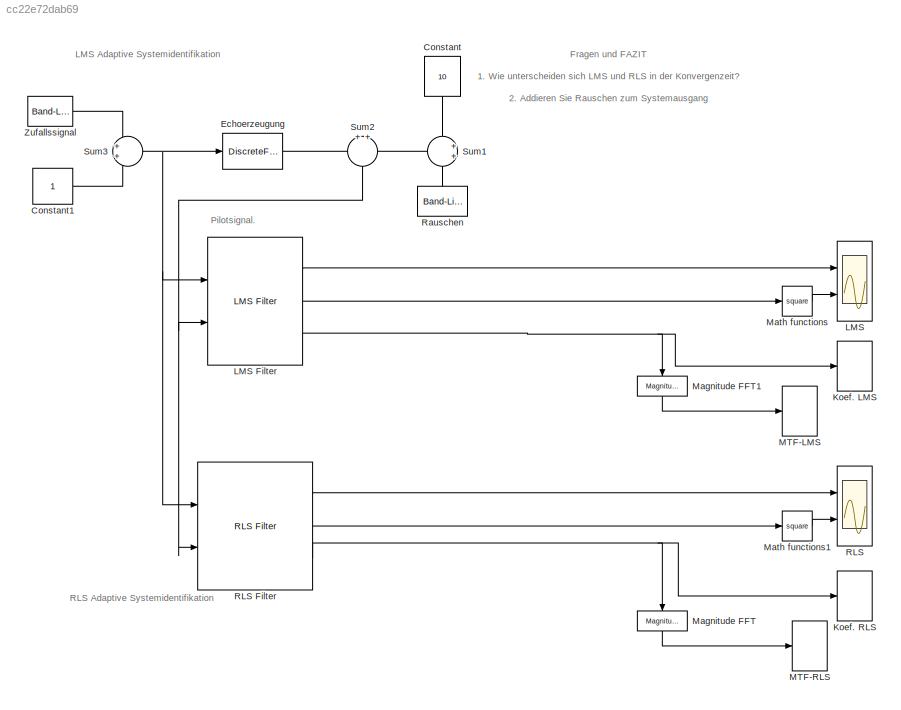
MODEL slx_cc22e72dab69
KIND model
CONFIG AbsTol = auto
CONFIG EnableMultiTasking = on
CONFIG FixedStep = auto
CONFIG MaxStep = auto
CONFIG MinStep = auto
CONFIG RelTol = 1e-3
CONFIG SampleTimeConstraint = Unconstrained
CONFIG Solver = ode45
CONFIG SolverName = ode45
CONFIG StartTime = 0.0
CONFIG StopTime = 30000.0
BLOCK [Constant] Constant
  SampleTime = 1
  Value = 10
BLOCK [Constant] Constant1
  SampleTime = 1
BLOCK [DiscreteFilter] Echoerzeugung
  Denominator = [1 ]
  InputPortMap = u0
  Numerator = [ 1 0 0 0 0 0 0 0 0.8]
  Ports = [1, 1]
  SampleTime = 1
BLOCK [ArrayPlot] Koef. LMS
  Ports = [1]
  ScopeSpecificationString = dsp.scopes.ArrayPlotBlockSpecification('CurrentConfiguration', extmgr.ConfigurationSet(extmgr.Configuration('Core','General UI',true),extmgr.Configuration('Core','Source UI',true),extmgr.Configuration('Sources','WiredSimulink',true),extmgr.Configuration('Visuals','Array Plot',true,'VectorScopeLegacyMode',true,'DisplayPropertyDefaults',struct('MinYLimReal','-0.129067','MaxYLimReal','1.13132','YLabe...<+1725ch>
BLOCK [ArrayPlot] Koef. RLS
  Ports = [1]
  ScopeSpecificationString = dsp.scopes.ArrayPlotBlockSpecification('CurrentConfiguration', extmgr.ConfigurationSet(extmgr.Configuration('Core','General UI',true),extmgr.Configuration('Core','Source UI',true),extmgr.Configuration('Sources','WiredSimulink',true),extmgr.Configuration('Visuals','Array Plot',true,'VectorScopeLegacyMode',true,'DisplayPropertyDefaults',struct('MinYLimReal','-1.05511','MaxYLimReal','1.02126','YLabel...<+1722ch>
BLOCK [Scope] LMS
  AttributesFormatString = test
  Floating = off
  NumInputPorts = 2
  Ports = [2]
  ScopeSpecificationString = Simulink.scopes.TimeScopeBlockCfg('CurrentConfiguration', extmgr.ConfigurationSet(extmgr.Configuration('Core','General UI',true),extmgr.Configuration('Core','Source UI',true),extmgr.Configuration('Sources','WiredSimulink',true,'DataLoggingVariableName','ScopeData1','DataLoggingSaveFormat','StructureWithTime','DataLoggingDecimation','1','DataLoggingDecimateData',true),extmgr.Configuration('Visuals'...<+2335ch>
BLOCK [Reference] LMS Filter  REF=dspadpt3/LMS Filter
  Ports = [2, 3]
  SourceBlock = dspadpt3/LMS Filter
  SourceProductBaseCode = DS
  SourceProductName = DSP System Toolbox
  SourceType = LMS Filter
BLOCK [ArrayPlot] MTF-LMS
  Ports = [1]
  ScopeSpecificationString = dsp.scopes.ArrayPlotBlockSpecification('CurrentConfiguration', extmgr.ConfigurationSet(extmgr.Configuration('Core','General UI',true),extmgr.Configuration('Core','Source UI',true),extmgr.Configuration('Sources','WiredSimulink',true),extmgr.Configuration('Visuals','Array Plot',true,'VectorScopeLegacyMode',true,'DisplayPropertyDefaults',struct('MinYLimReal','-0.0549773','MaxYLimReal','2.19036','YLab...<+1742ch>
BLOCK [ArrayPlot] MTF-RLS
  Ports = [1]
  ScopeSpecificationString = dsp.scopes.ArrayPlotBlockSpecification('CurrentConfiguration', extmgr.ConfigurationSet(extmgr.Configuration('Core','General UI',true),extmgr.Configuration('Core','Source UI',true),extmgr.Configuration('Sources','WiredSimulink',true),extmgr.Configuration('Sources','SimulinkEvent',false),extmgr.Configuration('Sources','Simulink',false),extmgr.Configuration('Sources','SPTool',false),extmgr.Configurat...<+3305ch>
BLOCK [Reference] Magnitude FFT  REF=dspspect3/Magnitude
FFT
  Ports = [1, 1]
  SourceBlock = dspspect3/Magnitude\nFFT
  SourceProductBaseCode = DS
  SourceProductName = DSP System Toolbox
  SourceType = Magnitude FFT
BLOCK [Reference] Magnitude FFT1  REF=dspspect3/Magnitude
FFT
  Ports = [1, 1]
  SourceBlock = dspspect3/Magnitude\nFFT
  SourceProductBaseCode = DS
  SourceProductName = DSP System Toolbox
  SourceType = Magnitude FFT
BLOCK [Math] Math functions
  Operator = square
  Ports = [1, 1]
BLOCK [Math] Math functions1
  Operator = square
  Ports = [1, 1]
BLOCK [Scope] RLS
  Floating = off
  NumInputPorts = 2
  Ports = [2]
  ScopeSpecificationString = Simulink.scopes.TimeScopeBlockCfg('CurrentConfiguration', extmgr.ConfigurationSet(extmgr.Configuration('Core','General UI',true),extmgr.Configuration('Core','Source UI',true),extmgr.Configuration('Sources','WiredSimulink',true,'DataLoggingSaveFormat','StructureWithTime','DataLoggingDecimation','1','DataLoggingDecimateData',true),extmgr.Configuration('Visuals','Time Domain',true,'SerializedDisplays...<+2189ch>
BLOCK [Reference] RLS Filter  REF=dspadpt3/RLS Filter
  Ports = [2, 3]
  SourceBlock = dspadpt3/RLS Filter
  SourceProductBaseCode = DS
  SourceProductName = DSP System Toolbox
  SourceType = RLS filter
BLOCK [Reference] Rauschen  REF=simulink/Sources/Band-Limited
White Noise
  Ports = [0, 1]
  SourceBlock = simulink/Sources/Band-Limited\nWhite Noise
  SourceProductBaseCode = SL
  SourceProductName = Simulink
  SourceType = Band-Limited White Noise.
BLOCK [Sum] Sum1
  IconShape = round
  Ports = [2, 1]
BLOCK [Sum] Sum2
  IconShape = round
  Ports = [2, 1]
BLOCK [Sum] Sum3
  IconShape = round
  Ports = [2, 1]
BLOCK [Reference] Zufallssignal  REF=simulink/Sources/Band-Limited
White Noise
  Ports = [0, 1]
  SourceBlock = simulink/Sources/Band-Limited\nWhite Noise
  SourceProductBaseCode = SL
  SourceProductName = Simulink
  SourceType = Band-Limited White Noise.
ANNOTATION (root): Fragen und FAZIT 1. Wie unterscheiden sich LMS und RLS in der Konvergenzeit? 2. Addieren Sie Rauschen zum Systemausgang 3. Addieren Sie eine Konstante (Bias) zum Eingangssignal. 4.Addieren Sie einen Bias zum Ausgangssignal. 4. Am Systemeingang und Systemausgang soll ein Bias von 10 anliegen. 4. Was bewirkt ein zusätzlicher Bias am Systemausgang? - Bias am Einganung und Ausgng führt zu konstantem O...<+92ch>
ANNOTATION (root): LMS Adaptive Systemidentifikation
ANNOTATION (root): Pilotsignal.
ANNOTATION (root): RLS Adaptive Systemidentifikation
LINE Constant1:1 -> Sum3:2
LINE Constant:1 -> Sum1:1
LINE Echoerzeugung:1 -> Sum2:1
LINE LMS Filter:1 -> LMS:1
LINE LMS Filter:2 -> Math functions:1
NET LMS Filter:3 -> Koef. LMS:1, Magnitude FFT1:1
LINE Magnitude FFT1:1 -> MTF-LMS:1
LINE Magnitude FFT:1 -> MTF-RLS:1
LINE Math functions1:1 -> RLS:2
LINE Math functions:1 -> LMS:2
LINE RLS Filter:1 -> RLS:1
LINE RLS Filter:2 -> Math functions1:1
NET RLS Filter:3 -> Koef. RLS:1, Magnitude FFT:1
LINE Rauschen:1 -> Sum1:2
LINE Sum1:1 -> Sum2:2
NET Sum2:1 -> LMS Filter:2, RLS Filter:2
NET Sum3:1 -> Echoerzeugung:1, LMS Filter:1, RLS Filter:1
LINE Zufallssignal:1 -> Sum3:1
note: NET lines group one-source signal fan-out (src -> all destinations, sorted); 1:1 wires keep LINE
